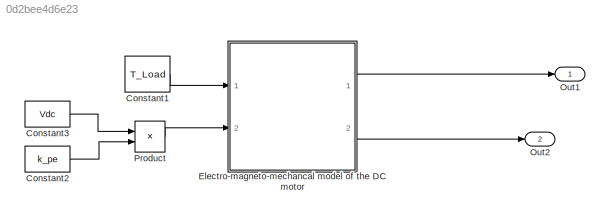
MODEL slx_0d2bee4d6e23
KIND model
CONFIG AbsTol = auto
CONFIG EnableMultiTasking = off
CONFIG FixedStep = auto
CONFIG MaxStep = auto
CONFIG MinStep = auto
CONFIG RelTol = 1e-3
CONFIG SampleTimeConstraint = Unconstrained
CONFIG Solver = VariableStepAuto
CONFIG SolverName = VariableStepAuto
CONFIG StartTime = 0.0
CONFIG StopTime = 500.0
BLOCK [Constant] Constant1
  Value = T_Load
BLOCK [Constant] Constant2
  Value = k_pe
BLOCK [Constant] Constant3
  Value = Vdc
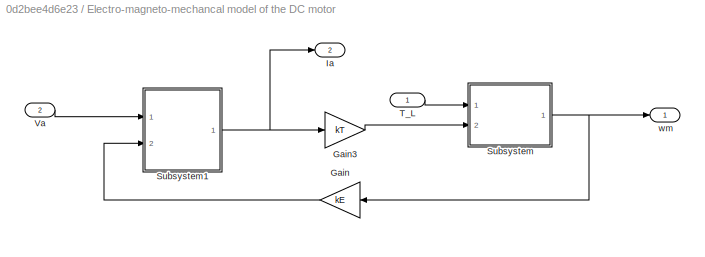
BLOCK [SubSystem] Electro-magneto-mechancal model of the DC motor
  Ports = [2, 2]
  RequestExecContextInheritance = off
BLOCK [Gain] Electro-magneto-mechancal model of the DC motor/Gain
  Gain = kE
  OutDataTypeStr = Inherit: Inherit via internal rule
  ParamDataTypeStr = Inherit: Inherit via internal rule
  SaturateOnIntegerOverflow = off
BLOCK [Gain] Electro-magneto-mechancal model of the DC motor/Gain3
  Gain = kT
  OutDataTypeStr = Inherit: Inherit via internal rule
  ParamDataTypeStr = Inherit: Inherit via internal rule
  SaturateOnIntegerOverflow = off
BLOCK [Outport] Electro-magneto-mechancal model of the DC motor/Ia
  IconDisplay = Port number
  Port = 2
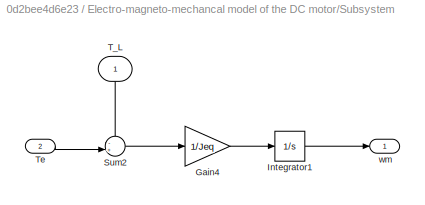
BLOCK [SubSystem] Electro-magneto-mechancal model of the DC motor/Subsystem
  Ports = [2, 1]
  RequestExecContextInheritance = off
BLOCK [Gain] Electro-magneto-mechancal model of the DC motor/Subsystem/Gain4
  Gain = 1/Jeq
  OutDataTypeStr = Inherit: Inherit via internal rule
  ParamDataTypeStr = Inherit: Inherit via internal rule
  SaturateOnIntegerOverflow = off
BLOCK [Integrator] Electro-magneto-mechancal model of the DC motor/Subsystem/Integrator1
  Ports = [1, 1]
BLOCK [Sum] Electro-magneto-mechancal model of the DC motor/Subsystem/Sum2
  IconShape = round
  InputSameDT = off
  Inputs = -+|
  OutDataTypeStr = Inherit: Inherit via internal rule
  Ports = [2, 1]
  SaturateOnIntegerOverflow = off
BLOCK [Inport] Electro-magneto-mechancal model of the DC motor/Subsystem/T_L
  IconDisplay = Port number
BLOCK [Inport] Electro-magneto-mechancal model of the DC motor/Subsystem/Te
  IconDisplay = Port number
  Port = 2
BLOCK [Outport] Electro-magneto-mechancal model of the DC motor/Subsystem/wm
  IconDisplay = Port number
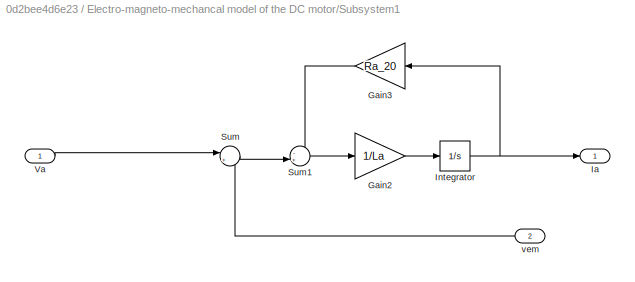
BLOCK [SubSystem] Electro-magneto-mechancal model of the DC motor/Subsystem1
  Ports = [2, 1]
  RequestExecContextInheritance = off
BLOCK [Gain] Electro-magneto-mechancal model of the DC motor/Subsystem1/Gain2
  Gain = 1/La
  OutDataTypeStr = Inherit: Inherit via internal rule
  ParamDataTypeStr = Inherit: Inherit via internal rule
  SaturateOnIntegerOverflow = off
BLOCK [Gain] Electro-magneto-mechancal model of the DC motor/Subsystem1/Gain3
  Gain = Ra_20
  OutDataTypeStr = Inherit: Inherit via internal rule
  ParamDataTypeStr = Inherit: Inherit via internal rule
  SaturateOnIntegerOverflow = off
BLOCK [Outport] Electro-magneto-mechancal model of the DC motor/Subsystem1/Ia
  IconDisplay = Port number
BLOCK [Integrator] Electro-magneto-mechancal model of the DC motor/Subsystem1/Integrator
  Ports = [1, 1]
BLOCK [Sum] Electro-magneto-mechancal model of the DC motor/Subsystem1/Sum
  IconShape = round
  InputSameDT = off
  Inputs = |+-
  OutDataTypeStr = Inherit: Inherit via internal rule
  Ports = [2, 1]
  SaturateOnIntegerOverflow = off
BLOCK [Sum] Electro-magneto-mechancal model of the DC motor/Subsystem1/Sum1
  IconShape = round
  InputSameDT = off
  Inputs = -+|
  OutDataTypeStr = Inherit: Inherit via internal rule
  Ports = [2, 1]
  SaturateOnIntegerOverflow = off
BLOCK [Inport] Electro-magneto-mechancal model of the DC motor/Subsystem1/Va
  IconDisplay = Port number
BLOCK [Inport] Electro-magneto-mechancal model of the DC motor/Subsystem1/vem
  IconDisplay = Port number
  Port = 2
BLOCK [Inport] Electro-magneto-mechancal model of the DC motor/T_L
  IconDisplay = Port number
BLOCK [Inport] Electro-magneto-mechancal model of the DC motor/Va
  IconDisplay = Port number
  Port = 2
BLOCK [Outport] Electro-magneto-mechancal model of the DC motor/wm
  IconDisplay = Port number
BLOCK [Outport] Out1
  IconDisplay = Port number
BLOCK [Outport] Out2
  IconDisplay = Port number
  Port = 2
BLOCK [Product] Product
  InputSameDT = off
  OutDataTypeStr = Inherit: Inherit via internal rule
  Ports = [2, 1]
  RndMeth = Floor
  SaturateOnIntegerOverflow = off
LINE Constant1:1 -> Electro-magneto-mechancal model of the DC motor:1
LINE Constant2:1 -> Product:2
LINE Constant3:1 -> Product:1
LINE Electro-magneto-mechancal model of the DC motor/Gain3:1 -> Electro-magneto-mechancal model of the DC motor/Subsystem:2
LINE Electro-magneto-mechancal model of the DC motor/Gain:1 -> Electro-magneto-mechancal model of the DC motor/Subsystem1:2
LINE Electro-magneto-mechancal model of the DC motor/Subsystem/Gain4:1 -> Electro-magneto-mechancal model of the DC motor/Subsystem/Integrator1:1
LINE Electro-magneto-mechancal model of the DC motor/Subsystem/Integrator1:1 -> Electro-magneto-mechancal model of the DC motor/Subsystem/wm:1
LINE Electro-magneto-mechancal model of the DC motor/Subsystem/Sum2:1 -> Electro-magneto-mechancal model of the DC motor/Subsystem/Gain4:1
LINE Electro-magneto-mechancal model of the DC motor/Subsystem/T_L:1 -> Electro-magneto-mechancal model of the DC motor/Subsystem/Sum2:1
LINE Electro-magneto-mechancal model of the DC motor/Subsystem/Te:1 -> Electro-magneto-mechancal model of the DC motor/Subsystem/Sum2:2
LINE Electro-magneto-mechancal model of the DC motor/Subsystem1/Gain2:1 -> Electro-magneto-mechancal model of the DC motor/Subsystem1/Integrator:1
LINE Electro-magneto-mechancal model of the DC motor/Subsystem1/Gain3:1 -> Electro-magneto-mechancal model of the DC motor/Subsystem1/Sum1:1
NET Electro-magneto-mechancal model of the DC motor/Subsystem1/Integrator:1 -> Electro-magneto-mechancal model of the DC motor/Subsystem1/Gain3:1, Electro-magneto-mechancal model of the DC motor/Subsystem1/Ia:1
LINE Electro-magneto-mechancal model of the DC motor/Subsystem1/Sum1:1 -> Electro-magneto-mechancal model of the DC motor/Subsystem1/Gain2:1
LINE Electro-magneto-mechancal model of the DC motor/Subsystem1/Sum:1 -> Electro-magneto-mechancal model of the DC motor/Subsystem1/Sum1:2
LINE Electro-magneto-mechancal model of the DC motor/Subsystem1/Va:1 -> Electro-magneto-mechancal model of the DC motor/Subsystem1/Sum:1
LINE Electro-magneto-mechancal model of the DC motor/Subsystem1/vem:1 -> Electro-magneto-mechancal model of the DC motor/Subsystem1/Sum:2
NET Electro-magneto-mechancal model of the DC motor/Subsystem1:1 -> Electro-magneto-mechancal model of the DC motor/Gain3:1, Electro-magneto-mechancal model of the DC motor/Ia:1
NET Electro-magneto-mechancal model of the DC motor/Subsystem:1 -> Electro-magneto-mechancal model of the DC motor/Gain:1, Electro-magneto-mechancal model of the DC motor/wm:1
LINE Electro-magneto-mechancal model of the DC motor/T_L:1 -> Electro-magneto-mechancal model of the DC motor/Subsystem:1
LINE Electro-magneto-mechancal model of the DC motor/Va:1 -> Electro-magneto-mechancal model of the DC motor/Subsystem1:1
LINE Electro-magneto-mechancal model of the DC motor:1 -> Out1:1
LINE Electro-magneto-mechancal model of the DC motor:2 -> Out2:1
LINE Product:1 -> Electro-magneto-mechancal model of the DC motor:2
note: NET lines group one-source signal fan-out (src -> all destinations, sorted); 1:1 wires keep LINE
